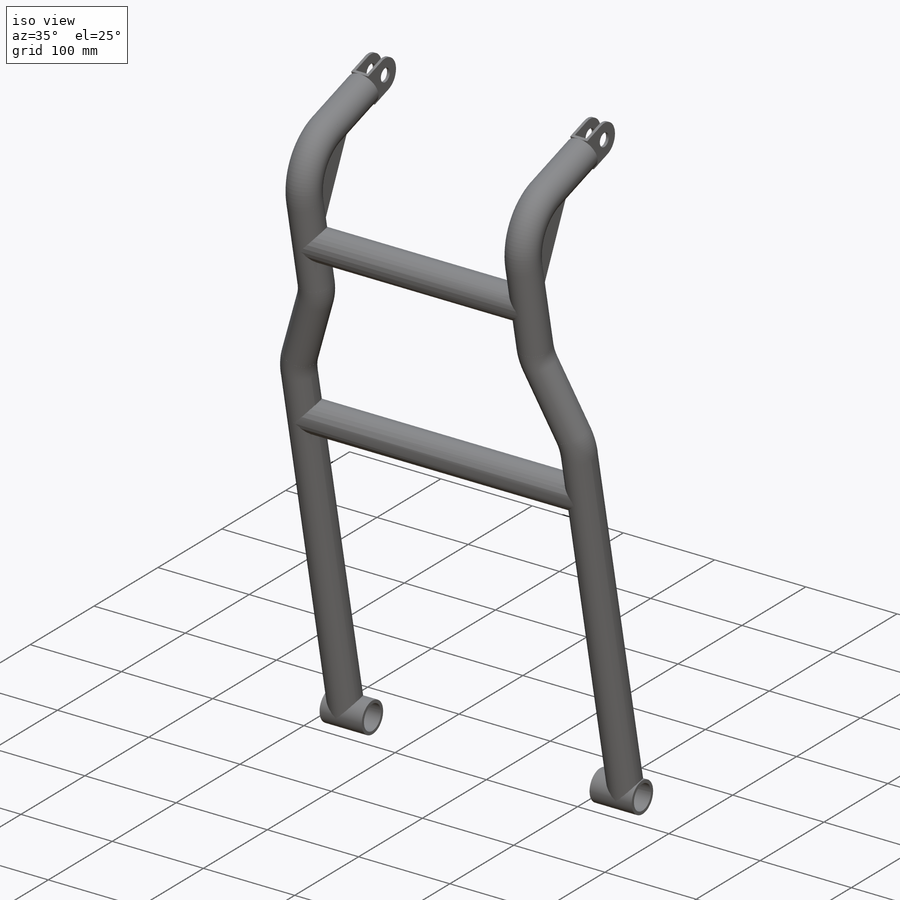
[diagram: iso view]
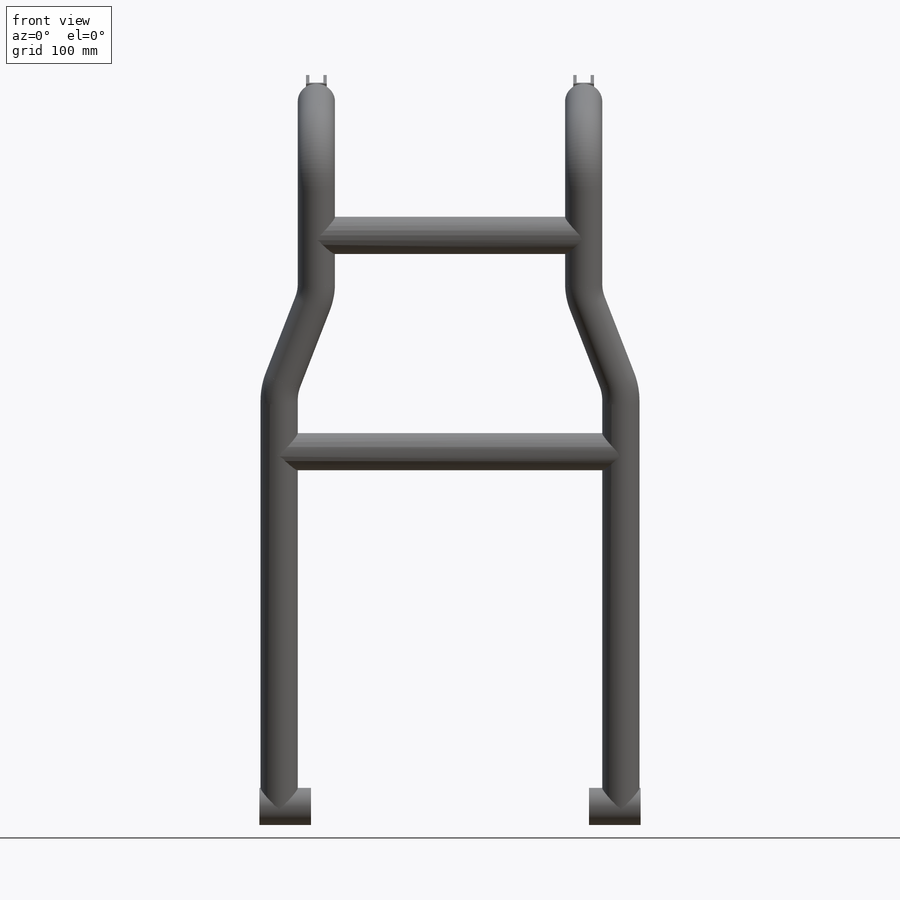
[diagram: front view]
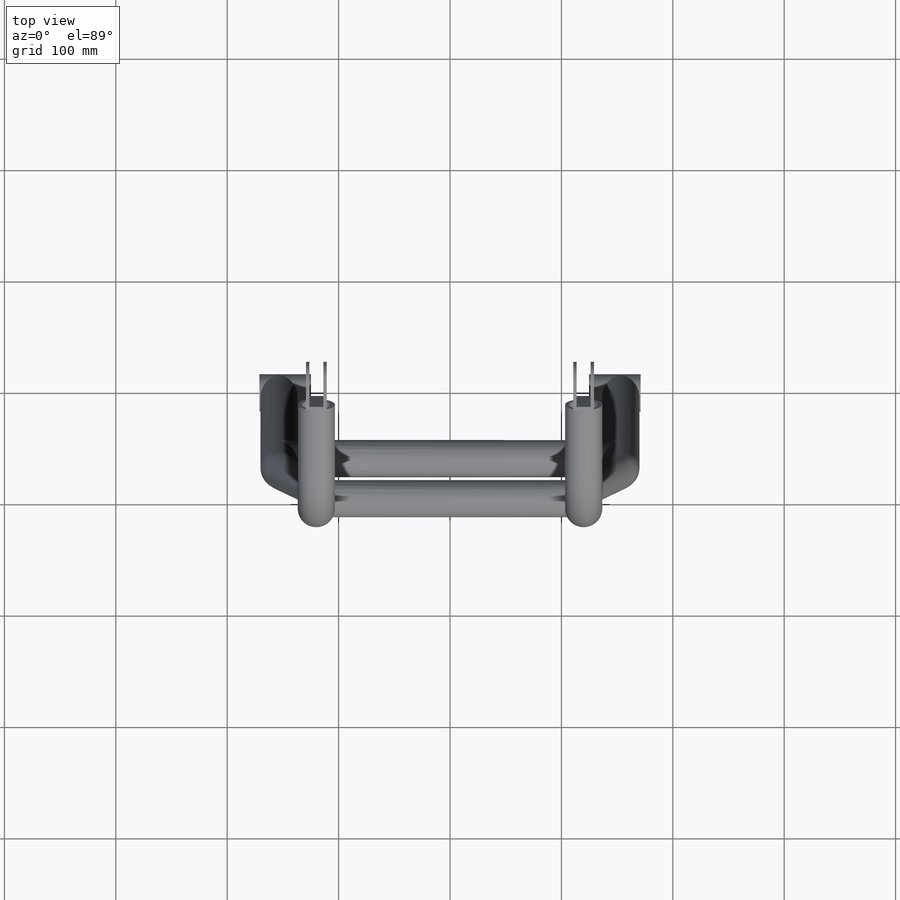
[diagram: top view]
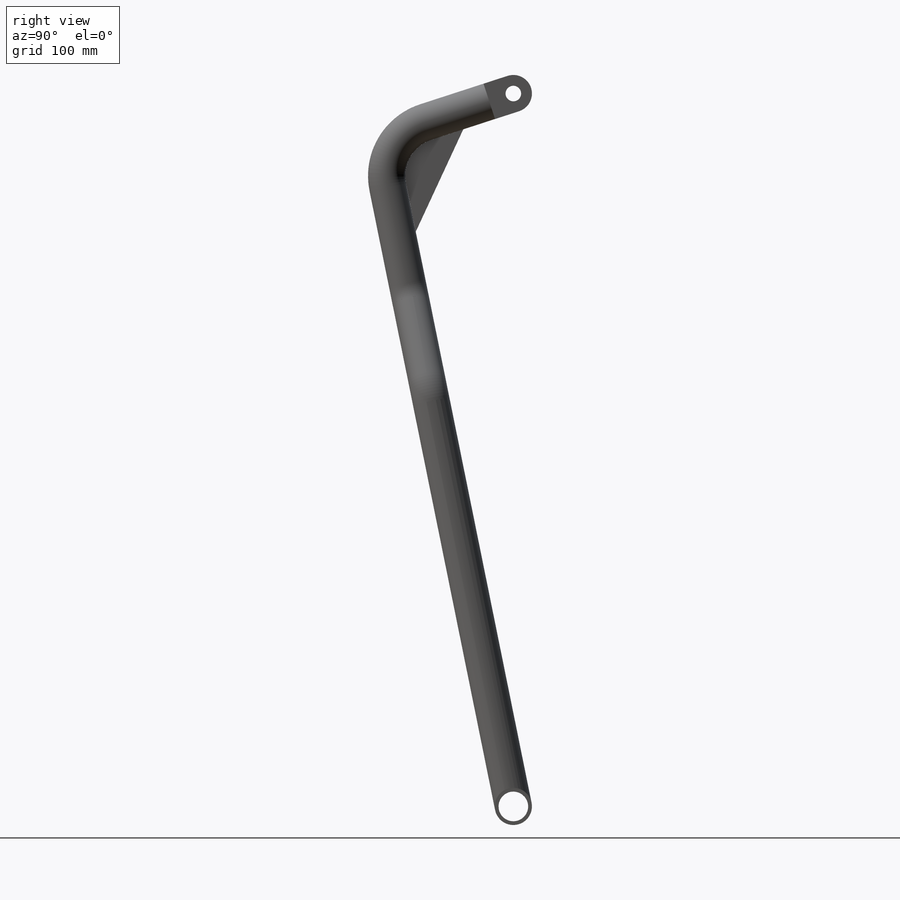
[diagram: right view]
SOLIDWORKS PART (.sldprt)
format: sldprt  version: not decoded by parser v0  size: 725,504 bytes
history: native  units: mm
features: sketch x21, plane x9, extrude x5, mirror x4, material x1, cut_extrude x1 (+10 scaffold rows collapsed)
feature tree (51):
  scaffold x10  (default folders/planes/origin — collapsed)
  material  "Material <sin especificar>"
  plane  "Alzado"
  plane  "Planta"
  plane  "Vista lateral"
  sketch  "Croquis1"  dims[D1=640.0mm]
  plane  "Plano1"  Offset=153.4mm
  sketch  "Croquis2"
  plane  "Plano2"  Offset=120mm
  sketch  "Croquis3"  dims[D1=416.7mm]
  plane  "Plano3"
  sketch  "Croquis7"  dims[D1=~22.874373mm D2=22.87mm]
  sketch  "Croquis9"  dims[D1=~12.269255mm]
  sketch  "Croquis10"
  sketch  "Croquis12"
  extrude  "Saliente-Extruir2"  Depth=17.7mm
  plane  "Plano9"  Offset=6.3mm
  sketch  "Croquis17"  dims[c1.D1=33.4mm c2.D1=~18.813679deg c3.D1=~19.716439mm c3.D2=19.72mm]
  mirror  "Simetría6"
  sketch  "Croquis18"  dims[c1.D1=50.8mm c1.D2=50.8mm c1.D5=50.8mm c2.D2=60.0mm c2.D3=60.0mm c2.D4=150.0mm c2.D5=60.0mm c3.D5=~155.873739deg c3.D6=~373.004589mm c4.D6=~155.873739deg c4.D7=~373.004589mm c4.D8=~620.192302mm]
  sketch  "Croquis24"
  extrude  "Saliente-Extruir3"  Depth=3mm
  sketch  "Croquis25"  dims[D1=3.0mm]
  extrude  "Saliente-Extruir4"  Depth=18.6mm
  sketch  "Croquis28"  dims[D1=0.0mm]
  extrude  "Saliente-Extruir6"  Depth=3mm
  mirror  "Simetría8"
  sketch  "Croquis29"  dims[D1=50.8mm D2=60.0mm]
  sketch  "Croquis30"  dims[c1.D2=50.8mm c1.D1=60.0mm c2.D2=~88.504987mm c3.D2=~96.532258deg c4.D2=~88.504987mm]
  plane  "Plano10"
  sketch  "Croquis31"  dims[c1.D3=50.8mm c1.D1=~59.00463mm c1.D2=60.0mm c2.D3=~55.873156mm c3.D3=~176.814431deg c3.D4=0.0mm c4.D3=~55.873156mm]
  sketch  "Croquis32"  dims[D1=55.8mm D3=50.8mm D2=~9.342955mm]
  sketch  "Croquis34"  dims[D1=240.0mm D2=308.0mm]
  plane  "Plano13"
  sketch  "Sketch1"  dims[In_dia=26.6446mm Out_dia=33.401mm D1=25.4mm]
  mirror  "Simetría10"
  sketch  "Croquis37"
  extrude  "Saliente-Extruir7"  Depth=3mm
  mirror  "Simetría11"
  sketch  "Croquis38"
  cut_extrude  "Cortar-Extruir1"  [1 undecoded]
  sketch  "Croquis40"  dims[D1=0.0mm]
decode coverage: 20 of 31 modeling features carry decoded parameters
note: ~ marks probable driven/reference dimensions
note: 1 parameter value undecoded
note: suppression state not decoded; provenance and decode notes live in map.json
